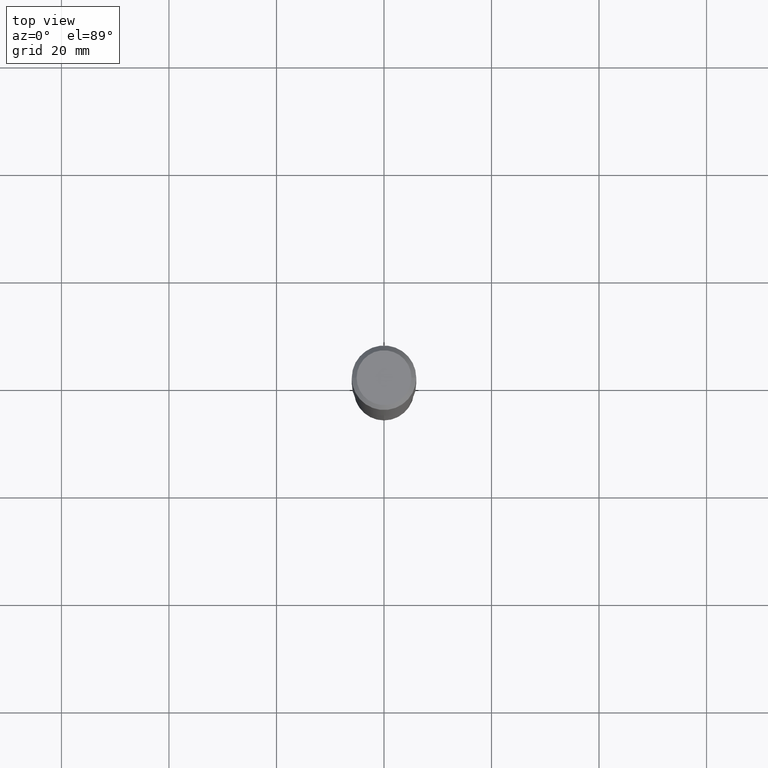
[diagram: clean part render]
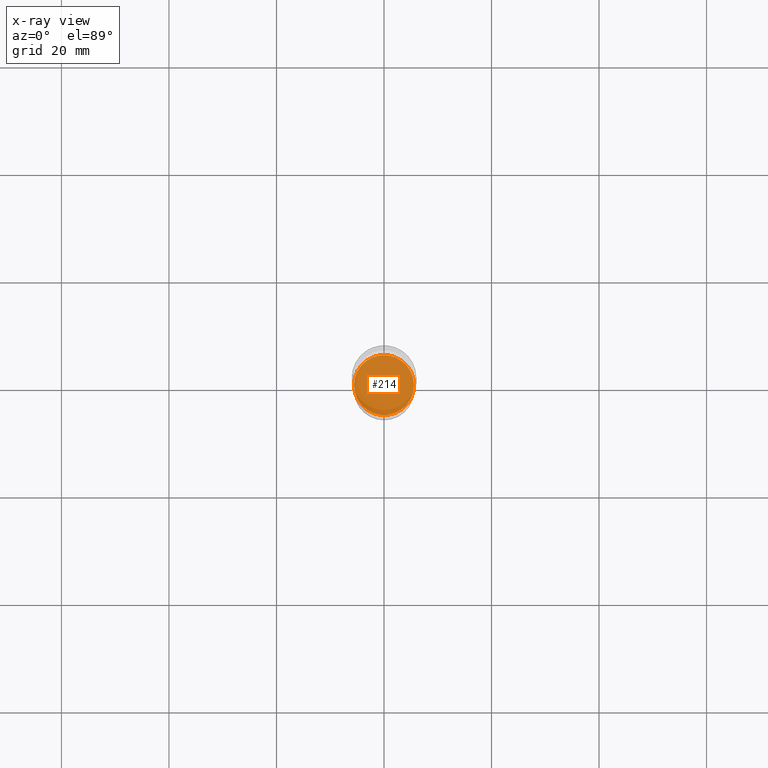
[diagram: x-ray — body ghosted, one internal face saturated and labeled with its STEP entity id]
A machine part, top view, then the same camera in x-ray: the body is ghosted and one INTERNAL B-rep face — a face not visible from any outside direction — is saturated and labeled: STEP entity #214.
In plain terms, the highlighted planar face has unit normal (-0, 0, 1).
Its self-contained STEP definition (entity closure, byte-faithful):
#5 = EDGE_CURVE ( 'NONE', #17, #92, #45, .T. ) ;
#17 = VERTEX_POINT ( 'NONE', #236 ) ;
#45 = CIRCLE ( 'NONE', #242, 0.2199500000000000066 ) ;
#92 = VERTEX_POINT ( 'NONE', #139 ) ;
#100 = DIRECTION ( 'NONE',  ( -2.438088387897960049E-29, 3.491481338843145188E-15, 1.000000000000000000 ) ) ;
#102 = DIRECTION ( 'NONE',  ( 1.000000000000000000, -6.982962677686265133E-15, 0.000000000000000000 ) ) ;
#139 = CARTESIAN_POINT ( 'NONE',  ( 0.2199500000000000066, -1.258993255973449563E-14, -3.166000000000000814 ) ) ;
#153 = AXIS2_PLACEMENT_3D ( 'NONE', #460, #100, #173 ) ;
#173 = DIRECTION ( 'NONE',  ( 1.000000000000000000, -6.982962677686265922E-15, 4.876176775795935793E-29 ) ) ;
#189 = ORIENTED_EDGE ( 'NONE', *, *, #221, .F. ) ;
#205 = FACE_OUTER_BOUND ( 'NONE', #343, .T. ) ;
#209 = DIRECTION ( 'NONE',  ( -2.445468806185136597E-29, 3.491481338843145583E-15, 1.000000000000000000 ) ) ;
#214 = ADVANCED_FACE ( 'NONE', ( #205 ), #327, .F. ) ;
#221 = EDGE_CURVE ( 'NONE', #92, #17, #410, .T. ) ;
#236 = CARTESIAN_POINT ( 'NONE',  ( -0.2199500000000000066, -9.488541944298949372E-15, -3.166000000000000814 ) ) ;
#242 = AXIS2_PLACEMENT_3D ( 'NONE', #315, #312, #419 ) ;
#312 = DIRECTION ( 'NONE',  ( -2.445468806185136597E-29, 3.491481338843145583E-15, 1.000000000000000000 ) ) ;
#315 = CARTESIAN_POINT ( 'NONE',  ( 7.742354240382144770E-29, -1.105402991877740236E-14, -3.166000000000000814 ) ) ;
#327 = PLANE ( 'NONE',  #153 ) ;
#343 = EDGE_LOOP ( 'NONE', ( #189, #367 ) ) ;
#367 = ORIENTED_EDGE ( 'NONE', *, *, #5, .F. ) ;
#393 = CARTESIAN_POINT ( 'NONE',  ( 7.742354240382144770E-29, -1.105402991877740236E-14, -3.166000000000000814 ) ) ;
#403 = AXIS2_PLACEMENT_3D ( 'NONE', #393, #209, #102 ) ;
#410 = CIRCLE ( 'NONE', #403, 0.2199500000000000066 ) ;
#419 = DIRECTION ( 'NONE',  ( 1.000000000000000000, -6.982962677686265133E-15, 0.000000000000000000 ) ) ;
#460 = CARTESIAN_POINT ( 'NONE',  ( 7.742354240382144770E-29, -1.105402991877740236E-14, -3.166000000000000814 ) ) ;